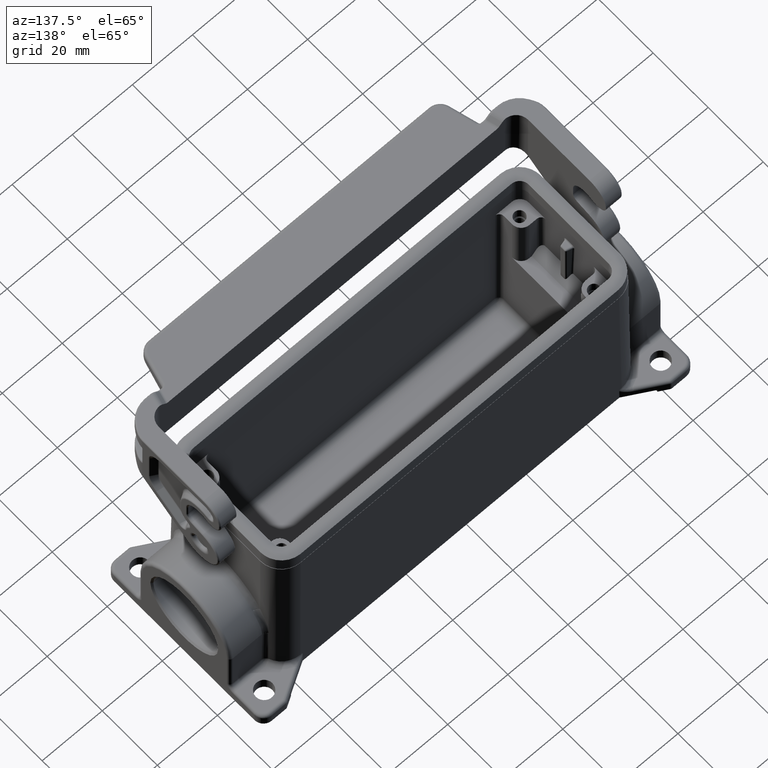
[diagram: clean part render]
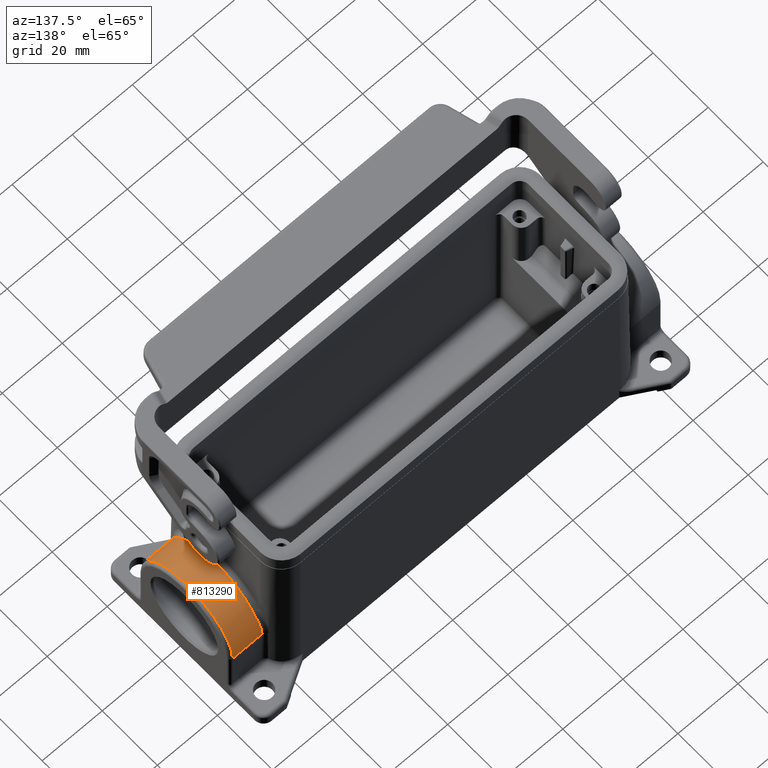
[diagram: same view with one face highlighted and labeled with its STEP entity id]
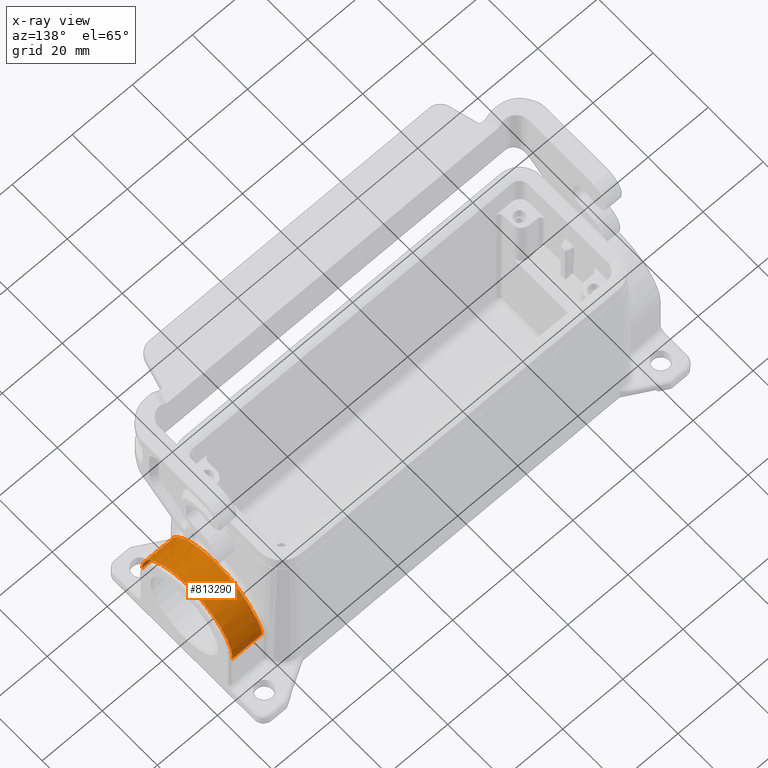
[diagram: x-ray of the same camera — body ghosted, the highlighted face saturated]
A machine part, auxiliary view. The second image highlights one B-rep face of the part: STEP entity #813290.
The next image is the same camera in x-ray: the body ghosted, the highlighted face saturated — about 0% of this face is hidden behind the body in this view.
In plain terms, the highlighted cylindrical surface (partial cylindrical patch) has radius 16.5 mm, axis along (-1, 0, 0).
Its self-contained STEP definition (entity closure, byte-faithful):
#36620=CARTESIAN_POINT('',(-16.5,-61.213138984579,20.));
#36630=VERTEX_POINT('',#36620);
#89830=CARTESIAN_POINT('',(16.5,-61.2131389845792,20.));
#89840=VERTEX_POINT('',#89830);
#89870=CARTESIAN_POINT('',(16.5,-61.2131389845792,20.));
#89880=CARTESIAN_POINT('',(16.5,-61.2124241888888,20.0535435283815));
#89890=CARTESIAN_POINT('',(16.4997394274855,-61.2118237143991,
20.1070878076878));
#89900=CARTESIAN_POINT('',(16.4988727584336,-61.2110155276583,
20.1961034919032));
#89910=CARTESIAN_POINT('',(16.4984129983337,-61.2107436927012,
20.2315752564192));
#89920=CARTESIAN_POINT('',(16.4951258615464,-61.2094752547723,
20.4346506897495));
#89930=CARTESIAN_POINT('',(16.4898594724579,-61.2095511309743,
20.6021959335832));
#89940=CARTESIAN_POINT('',(16.4742209485989,-61.2119183372834,
20.9370902630804));
#89950=CARTESIAN_POINT('',(16.4638523672185,-61.2142088133193,
21.1043853485925));
#89960=CARTESIAN_POINT('',(16.438020367736,-61.2209315743707,
21.4385992240249));
#89970=CARTESIAN_POINT('',(16.4225628770122,-61.2253619755964,
21.605465435766));
#89980=CARTESIAN_POINT('',(16.386569070952,-61.2362490614744,
21.9386650394916));
#89990=CARTESIAN_POINT('',(16.3660402842636,-61.2427032114352,
22.1049479334038));
#90000=CARTESIAN_POINT('',(16.3199291824466,-61.2574812859207,
22.4367918250804));
#90010=CARTESIAN_POINT('',(16.2943569383932,-61.2658017450909,
22.6023051073609));
#90020=CARTESIAN_POINT('',(16.2381881680857,-61.2841190162845,
22.9324495315291));
#90030=CARTESIAN_POINT('',(16.2076033567266,-61.294111901922,
23.0970360410709));
#90040=CARTESIAN_POINT('',(16.1414436673884,-61.3155464300154,
23.4251688512276));
#90050=CARTESIAN_POINT('',(16.1058820661867,-61.326983855448,
23.5886738967532));
#90060=CARTESIAN_POINT('',(16.0298797230826,-61.3510261009891,
23.9141798590296));
#90070=CARTESIAN_POINT('',(15.9894631249881,-61.363624347135,
24.0761451630921));
#90080=CARTESIAN_POINT('',(15.9037350026237,-61.3897235376718,
24.3987538471833));
#90090=CARTESIAN_POINT('',(15.8584391323774,-61.4032203725479,
24.5593623943336));
#90100=CARTESIAN_POINT('',(15.7629921534755,-61.4308095268549,
24.8791270761235));
#90110=CARTESIAN_POINT('',(15.7128577562218,-61.4448980482611,
25.0382509038994));
#90120=CARTESIAN_POINT('',(15.6077750754227,-61.4733417652121,
25.3549179624999));
#90130=CARTESIAN_POINT('',(15.5528446334881,-61.4876936209284,
25.5124310461624));
#90140=CARTESIAN_POINT('',(15.4382124242398,-61.516315845305,
25.8257514588215));
#90150=CARTESIAN_POINT('',(15.3785297389619,-61.5305834729553,
25.9815302504597));
#90160=CARTESIAN_POINT('',(15.2544352016012,-61.5586717613136,
26.2912631981198));
#90170=CARTESIAN_POINT('',(15.1900437092921,-61.5724904030473,
26.4451897675953));
#90180=CARTESIAN_POINT('',(15.056577266705,-61.5992980867213,
26.7510945438574));
#90190=CARTESIAN_POINT('',(14.9875243476315,-61.6122859729547,
26.9030455264847));
#90200=CARTESIAN_POINT('',(14.8447819461477,-61.6370337397891,
27.2048778252696));
#90210=CARTESIAN_POINT('',(14.7711162649586,-61.6487934572866,
27.3547317453273));
#90220=CARTESIAN_POINT('',(14.6193715680263,-61.6706455609772,
27.6519076337409));
#90230=CARTESIAN_POINT('',(14.5413289234119,-61.6807426069066,
27.7992061442946));
#90240=CARTESIAN_POINT('',(14.3807401400155,-61.6988730900392,
28.0914804746033));
#90250=CARTESIAN_POINT('',(14.2982227426337,-61.706908884973,
28.2364265953056));
#90260=CARTESIAN_POINT('',(14.1287585097007,-61.7204718366473,
28.5238459868877));
#90270=CARTESIAN_POINT('',(14.0418440246542,-61.7260031010179,
28.6662874279854));
#90280=CARTESIAN_POINT('',(13.8636652227093,-61.73409611127,
28.9485515949097));
#90290=CARTESIAN_POINT('',(13.7724368398115,-61.7366637990772,
29.088339815947));
#90300=CARTESIAN_POINT('',(13.6619555207223,-61.7376622654396,
29.2521293209184));
#90310=CARTESIAN_POINT('',(13.6448689775928,-61.7377589291275,
29.2773097975648));
#90320=CARTESIAN_POINT('',(13.5886284426484,-61.7378834310653,
29.3596999216067));
#90330=CARTESIAN_POINT('',(13.5491470418224,-61.7376652517123,
29.4167629325576));
#90340=CARTESIAN_POINT('',(13.5093283438704,-61.7371246282081,
29.4735446216029));
#90350=B_SPLINE_CURVE_WITH_KNOTS('',3,(#89870,#89880,#89890,#89900,
#89910,#89920,#89930,#89940,#89950,#89960,#89970,#89980,#89990,#90000,
#90010,#90020,#90030,#90040,#90050,#90060,#90070,#90080,#90090,#90100,
#90110,#90120,#90130,#90140,#90150,#90160,#90170,#90180,#90190,#90200,
#90210,#90220,#90230,#90240,#90250,#90260,#90270,#90280,#90290,#90300,
#90310,#90320,#90330,#90340),.UNSPECIFIED.,.F.,.F.,(4,2,2,2,2,2,2,2,2,2,
2,2,2,2,2,2,2,2,2,2,2,2,2,4),(0.,0.168092270959983,0.279449832537725,
0.805616234002088,1.3316764809375,1.8575454674328,2.38320228643588,
2.90850827803156,3.43339596828346,3.95778282905809,4.48058048603214,
5.00274067649962,5.52420265438151,6.0448983905602,6.56475917599136,
7.0837324030688,7.60175138859518,8.11876665042431,8.6335644555907,
9.14725164089933,9.65974768228696,10.171027705509,10.2640923403624,
10.4760449734825),.UNSPECIFIED.);
#90360=CARTESIAN_POINT('',(13.5093283438704,-61.7371246282081,
29.4735446216029));
#90370=VERTEX_POINT('',#90360);
#90380=EDGE_CURVE('',#89840,#90370,#90350,.T.);
#103240=CARTESIAN_POINT('',(-13.5093283438704,-61.7371246282081,
29.4735446216028));
#103250=CARTESIAN_POINT('',(-13.4705980029545,-61.7365988294921,
29.5287743073437));
#103260=CARTESIAN_POINT('',(-13.4315292124167,-61.7360751025675,
29.5837662193947));
#103270=CARTESIAN_POINT('',(-12.7347406290248,-61.7268581515658,
30.5519110285239));
#103280=CARTESIAN_POINT('',(-11.9852647908012,-61.7188206255,
31.3961695189356));
#103290=CARTESIAN_POINT('',(-10.1509555268786,-61.7027978386769,
33.0791965728581));
#103300=CARTESIAN_POINT('',(-9.03648962531896,-61.6952444153899,
33.87260510296));
#103310=CARTESIAN_POINT('',(-6.63792121266557,-61.6829191675672,
35.1672441542616));
#103320=CARTESIAN_POINT('',(-5.36305690875458,-61.6781947919676,
35.6634906583854));
#103330=CARTESIAN_POINT('',(-2.72042619354561,-61.6718384883642,
36.3311542206381));
#103340=CARTESIAN_POINT('',(-1.36283754836767,-61.6702310394985,36.5));
#103350=CARTESIAN_POINT('',(1.36283754835908,-61.6702310394985,36.5));
#103360=CARTESIAN_POINT('',(2.72042619352842,-61.6718384883642,
36.3311542206403));
#103370=CARTESIAN_POINT('',(5.36305690872177,-61.6781947919675,
35.6634906583959));
#103380=CARTESIAN_POINT('',(6.63792121262563,-61.6829191675671,
35.1672441542783));
#103390=CARTESIAN_POINT('',(9.03648962527549,-61.6952444153896,
33.8726051029882));
#103400=CARTESIAN_POINT('',(10.1509555268375,-61.7027978386766,
33.07919657289));
#103410=CARTESIAN_POINT('',(11.9852647907781,-61.7188206254998,
31.3961695189615));
#103420=CARTESIAN_POINT('',(12.7347406290146,-61.7268581515657,
30.5519110285381));
#103430=CARTESIAN_POINT('',(13.4315292124167,-61.7360751025675,
29.5837662193948));
#103440=CARTESIAN_POINT('',(13.4705980029545,-61.7365988294921,
29.5287743073437));
#103450=CARTESIAN_POINT('',(13.5093283438704,-61.7371246282081,
29.4735446216029));
#103460=B_SPLINE_CURVE_WITH_KNOTS('',3,(#103240,#103250,#103260,#103270,
#103280,#103290,#103300,#103310,#103320,#103330,#103340,#103350,#103360,
#103370,#103380,#103390,#103400,#103410,#103420,#103430,#103440,#103450)
,.UNSPECIFIED.,.F.,.F.,(4,2,2,2,2,2,2,2,2,2,4),(0.,0.211535128211734,
3.74055452878898,8.00948390321335,12.2783858909288,16.5472853974156,
20.8161849038754,25.0850868915633,29.3540162659846,32.8830356666106,
33.0945707948218),.UNSPECIFIED.);
#103470=CARTESIAN_POINT('',(-13.5093283438704,-61.7371246282081,
29.4735446216028));
#103480=VERTEX_POINT('',#103470);
#103490=EDGE_CURVE('',#103480,#90370,#103460,.T.);
#795110=CARTESIAN_POINT('',(-16.5,-60.0000000000001,20.));
#795120=DIRECTION('',(0.,-1.,0.));
#795130=VECTOR('',#795120,1.);
#795140=LINE('',#795110,#795130);
#795150=CARTESIAN_POINT('',(-16.5,-71.0000000000003,20.));
#795160=VERTEX_POINT('',#795150);
#795170=EDGE_CURVE('',#36630,#795160,#795140,.T.);
#795600=CARTESIAN_POINT('',(16.5,-71.0000000000003,20.));
#795610=VERTEX_POINT('',#795600);
#795640=CARTESIAN_POINT('',(16.5,-60.0000000000001,20.));
#795650=DIRECTION('',(0.,-1.,0.));
#795660=VECTOR('',#795650,1.);
#795670=LINE('',#795640,#795660);
#795680=EDGE_CURVE('',#89840,#795610,#795670,.T.);
#812600=CARTESIAN_POINT('',(0.,-60.0000000000001,20.));
#812610=DIRECTION('',(0.,1.,0.));
#812620=DIRECTION('',(-1.,0.,0.));
#812630=AXIS2_PLACEMENT_3D('',#812600,#812610,#812620);
#812640=CYLINDRICAL_SURFACE('',#812630,16.5);
#812650=CARTESIAN_POINT('',(-16.5,-61.213138984579,20.));
#812660=CARTESIAN_POINT('',(-16.5,-61.2124241888887,20.0535435283815));
#812670=CARTESIAN_POINT('',(-16.4997394274862,-61.2118237143998,
20.1070878076194));
#812680=CARTESIAN_POINT('',(-16.498872758433,-61.2110155276578,
20.1961034919599));
#812690=CARTESIAN_POINT('',(-16.4984129983323,-61.2107436927004,
20.2315752565325));
#812700=CARTESIAN_POINT('',(-16.495125861542,-61.209475254772,
20.4346506899114));
#812710=CARTESIAN_POINT('',(-16.4898594724522,-61.2095511309748,
20.6021959337369));
#812720=CARTESIAN_POINT('',(-16.474220948591,-61.211918337285,
20.9370902632178));
#812730=CARTESIAN_POINT('',(-16.4638523672097,-61.2142088133213,
21.1043853487217));
#812740=CARTESIAN_POINT('',(-16.4380203677261,-61.2209315743735,
21.4385992241378));
#812750=CARTESIAN_POINT('',(-16.4225628770018,-61.2253619755995,
21.6054654358707));
#812760=CARTESIAN_POINT('',(-16.3865690709415,-61.2362490614777,
21.93866503958));
#812770=CARTESIAN_POINT('',(-16.3660402842532,-61.2427032114385,
22.104947933484));
#812780=CARTESIAN_POINT('',(-16.319929182437,-61.2574812859238,
22.4367918251444));
#812790=CARTESIAN_POINT('',(-16.2943569383841,-61.2658017450939,
22.6023051074168));
#812800=CARTESIAN_POINT('',(-16.2381881680784,-61.2841190162869,
22.9324495315688));
#812810=CARTESIAN_POINT('',(-16.2076033567204,-61.294111901924,
23.0970360411027));
#812820=CARTESIAN_POINT('',(-16.141443667385,-61.3155464300164,
23.4251688512434));
#812830=CARTESIAN_POINT('',(-16.1058820661848,-61.3269838554486,
23.5886738967611));
#812840=CARTESIAN_POINT('',(-16.0298797230829,-61.351026100989,
23.9141798590284));
#812850=CARTESIAN_POINT('',(-15.9894631249886,-61.3636243471348,
24.0761451630898));
#812860=CARTESIAN_POINT('',(-15.903735002625,-61.3897235376714,
24.3987538471785));
#812870=CARTESIAN_POINT('',(-15.8584391323791,-61.4032203725474,
24.5593623943277));
#812880=CARTESIAN_POINT('',(-15.762992153478,-61.4308095268542,
24.8791270761153));
#812890=CARTESIAN_POINT('',(-15.7128577562248,-61.4448980482602,
25.03825090389));
#812900=CARTESIAN_POINT('',(-15.6077750754267,-61.4733417652111,
25.3549179624882));
#812910=CARTESIAN_POINT('',(-15.5528446334926,-61.4876936209272,
25.5124310461496));
#812920=CARTESIAN_POINT('',(-15.4382124242455,-61.5163158453036,
25.8257514588065));
#812930=CARTESIAN_POINT('',(-15.3785297389682,-61.5305834729538,
25.9815302504436));
#812940=CARTESIAN_POINT('',(-15.2544352016088,-61.5586717613119,
26.2912631981016));
#812950=CARTESIAN_POINT('',(-15.1900437093003,-61.5724904030456,
26.4451897675761));
#812960=CARTESIAN_POINT('',(-15.0565772667146,-61.5992980867195,
26.751094543836));
#812970=CARTESIAN_POINT('',(-14.9875243476418,-61.6122859729528,
26.9030455264623));
#812980=CARTESIAN_POINT('',(-14.8447819461595,-61.6370337397871,
27.2048778252452));
#812990=CARTESIAN_POINT('',(-14.7711162649712,-61.6487934572847,
27.3547317453019));
#813000=CARTESIAN_POINT('',(-14.6193715680406,-61.6706455609753,
27.6519076337136));
#813010=CARTESIAN_POINT('',(-14.5413289234271,-61.6807426069047,
27.7992061442664));
#813020=CARTESIAN_POINT('',(-14.3807401400324,-61.6988730900375,
28.0914804745732));
#813030=CARTESIAN_POINT('',(-14.2982227426515,-61.7069088849714,
28.2364265952747));
#813040=CARTESIAN_POINT('',(-14.1287585097204,-61.7204718366459,
28.5238459868551));
#813050=CARTESIAN_POINT('',(-14.0418440246749,-61.7260031010167,
28.6662874279518));
#813060=CARTESIAN_POINT('',(-13.863665222732,-61.7340961112692,
28.9485515948746));
#813070=CARTESIAN_POINT('',(-13.7724368398352,-61.7366637990767,
29.0883398159111));
#813080=CARTESIAN_POINT('',(-13.6619555207388,-61.7376622654395,
29.252129320894));
#813090=CARTESIAN_POINT('',(-13.6448689776012,-61.7377589291275,
29.2773097975526));
#813100=CARTESIAN_POINT('',(-13.5886284426484,-61.7378834310653,
29.3596999216067));
#813110=CARTESIAN_POINT('',(-13.5491470418225,-61.7376652517123,
29.4167629325576));
#813120=CARTESIAN_POINT('',(-13.5093283438704,-61.7371246282081,
29.4735446216028));
#813130=B_SPLINE_CURVE_WITH_KNOTS('',3,(#812650,#812660,#812670,#812680,
#812690,#812700,#812710,#812720,#812730,#812740,#812750,#812760,#812770,
#812780,#812790,#812800,#812810,#812820,#812830,#812840,#812850,#812860,
#812870,#812880,#812890,#812900,#812910,#812920,#812930,#812940,#812950,
#812960,#812970,#812980,#812990,#813000,#813010,#813020,#813030,#813040,
#813050,#813060,#813070,#813080,#813090,#813100,#813110,#813120),
.UNSPECIFIED.,.F.,.F.,(4,2,2,2,2,2,2,2,2,2,2,2,2,2,2,2,2,2,2,2,2,2,2,4),
(0.,0.168092271174844,0.279449832930474,0.805616234369591,
1.3316764812797,1.85754546774968,2.3832022867275,2.90850827829784,
3.43339596852442,3.95778282927379,4.48058048624405,5.00274067670786,
5.52420265458618,6.0448983907612,6.56475917618865,7.08373240326229,
7.6017513887849,8.11876665061037,8.63356445577316,9.14725164107818,
9.65974768246228,10.1710277056807,10.2640923405793,10.4760449736995),
.UNSPECIFIED.);
#813140=EDGE_CURVE('',#36630,#103480,#813130,.T.);
#813150=ORIENTED_EDGE('',*,*,#813140,.F.);
#813160=ORIENTED_EDGE('',*,*,#103490,.F.);
#813170=ORIENTED_EDGE('',*,*,#90380,.T.);
#813180=ORIENTED_EDGE('',*,*,#795680,.F.);
#813190=CARTESIAN_POINT('',(0.,-71.0000000000003,20.));
#813200=DIRECTION('',(0.,-1.,0.));
#813210=DIRECTION('',(-1.,0.,0.));
#813220=AXIS2_PLACEMENT_3D('',#813190,#813200,#813210);
#813230=CIRCLE('',#813220,16.5);
#813240=EDGE_CURVE('',#795610,#795160,#813230,.T.);
#813250=ORIENTED_EDGE('',*,*,#813240,.F.);
#813260=ORIENTED_EDGE('',*,*,#795170,.T.);
#813270=EDGE_LOOP('',(#813260,#813250,#813180,#813170,#813160,#813150));
#813280=FACE_OUTER_BOUND('',#813270,.T.);
#813290=ADVANCED_FACE('',(#813280),#812640,.T.);